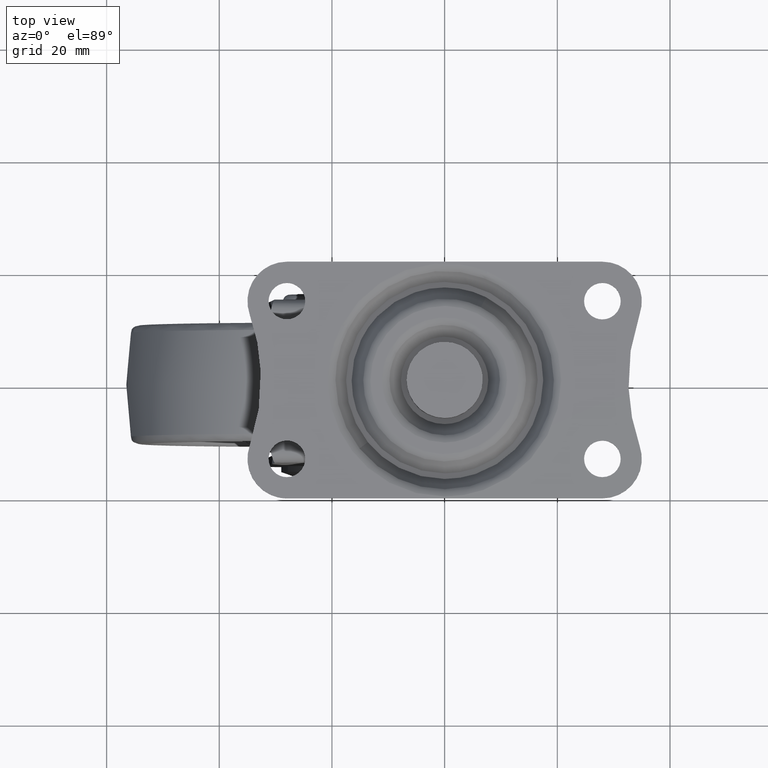
[diagram: clean part render]
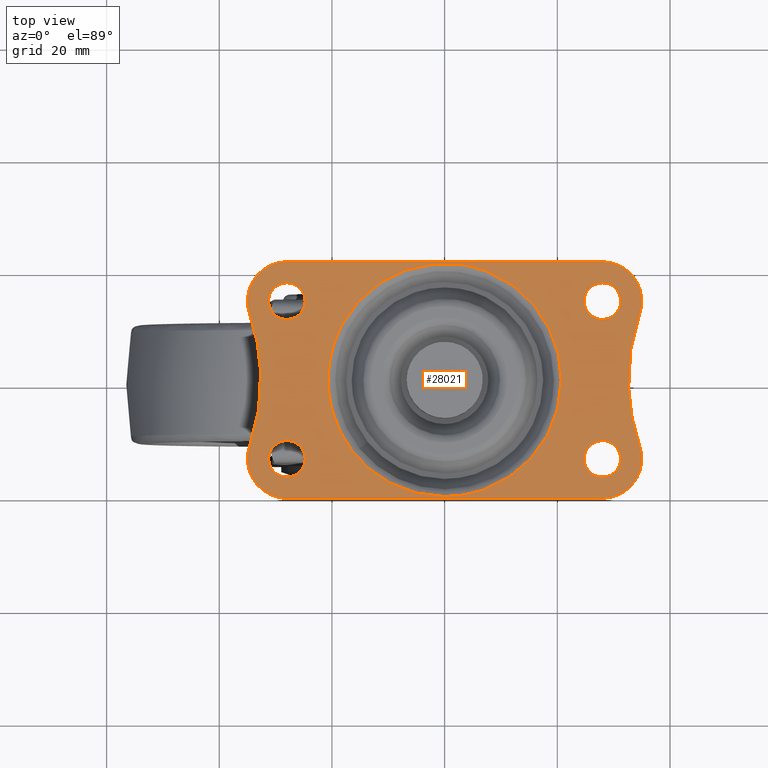
[diagram: same view with one face highlighted and labeled with its STEP entity id]
A machine part, top view. The second image highlights one B-rep face of the part: STEP entity #28021.
In plain terms, the highlighted face is a freeform B-spline surface patch.
Its self-contained STEP definition (entity closure, byte-faithful):
#21251=CARTESIAN_POINT('',(-30.098661759313249,16.481556132544569,1.499999999999946));
#21252=VERTEX_POINT('',#21251);
#21258=CARTESIAN_POINT('',(-31.249999800000001,14.0,1.499999999999946));
#21259=VERTEX_POINT('',#21258);
#21260=CARTESIAN_POINT('',(-30.098661759313249,16.481556132544569,1.499999999999946));
#21261=CARTESIAN_POINT('',(-30.289594237411581,16.320154293249061,1.499999999999947));
#21262=CARTESIAN_POINT('',(-30.623752231378621,15.963778604898430,1.499999999999943));
#21263=CARTESIAN_POINT('',(-30.974920071749391,15.363702581150390,1.499999999999943));
#21264=CARTESIAN_POINT('',(-31.197124987303312,14.705887535537650,1.499999999999956));
#21265=CARTESIAN_POINT('',(-31.250053074161389,14.250012150224620,1.499999999999941));
#21266=CARTESIAN_POINT('',(-31.249999800000001,14.0,1.499999999999946));
#21267=B_SPLINE_CURVE_WITH_KNOTS('',3,(#21260,#21261,#21262,#21263,#21264,#21265,#21266),.UNSPECIFIED.,.F.,.U.,(4,1,1,1,4),(0.000000054423092,0.750026321992885,1.455906029096063,2.073600820210960,2.823627087781163),.UNSPECIFIED.);
#21268=EDGE_CURVE('',#21252,#21259,#21267,.T.);
#21270=CARTESIAN_POINT('',(-27.999997928806089,10.750000200000660,1.499999999999946));
#21271=VERTEX_POINT('',#21270);
#21272=CARTESIAN_POINT('',(-31.249999800000001,14.0,1.499999999999946));
#21273=CARTESIAN_POINT('',(-31.250184525599611,13.654315834987971,1.499999999999946));
#21274=CARTESIAN_POINT('',(-31.168629431308140,13.149254880770741,1.499999999999947));
#21275=CARTESIAN_POINT('',(-30.893079888065120,12.484195588004100,1.499999999999947));
#21276=CARTESIAN_POINT('',(-30.578643457823169,11.987597755424479,1.499999999999945));
#21277=CARTESIAN_POINT('',(-30.136500463179491,11.523209991700501,1.499999999999948));
#21278=CARTESIAN_POINT('',(-29.612254228586071,11.153992996147981,1.499999999999942));
#21279=CARTESIAN_POINT('',(-28.903919822883601,10.839956242095861,1.499999999999953));
#21280=CARTESIAN_POINT('',(-28.345680067237780,10.749811561309039,1.499999999999937));
#21281=CARTESIAN_POINT('',(-27.999997928806089,10.750000200000660,1.499999999999946));
#21282=B_SPLINE_CURVE_WITH_KNOTS('',3,(#21272,#21273,#21274,#21275,#21276,#21277,#21278,#21279,#21280,#21281),.UNSPECIFIED.,.F.,.U.,(4,1,1,1,1,1,1,4),(0.000000086994697,1.036990327624215,1.515618314076126,2.153791717554028,2.791894719708033,3.430051568851688,4.068226782471074,5.105217022309462),.UNSPECIFIED.);
#21283=EDGE_CURVE('',#21259,#21271,#21282,.T.);
#21285=CARTESIAN_POINT('',(-24.750000199999999,14.0,1.499999999999946));
#21286=VERTEX_POINT('',#21285);
#21287=CARTESIAN_POINT('',(-27.999997928806089,10.750000200000660,1.499999999999946));
#21288=CARTESIAN_POINT('',(-27.654315511227459,10.749812278349269,1.499999999999945));
#21289=CARTESIAN_POINT('',(-27.096079022728311,10.839954147837460,1.499999999999947));
#21290=CARTESIAN_POINT('',(-26.387738840174130,11.153997100902471,1.499999999999946));
#21291=CARTESIAN_POINT('',(-25.863501423968259,11.523205239792439,1.499999999999949));
#21292=CARTESIAN_POINT('',(-25.421350830321810,11.987600571720860,1.499999999999942));
#21293=CARTESIAN_POINT('',(-25.106918182389879,12.484195088063791,1.499999999999956));
#21294=CARTESIAN_POINT('',(-24.831370970281601,13.149254035125100,1.499999999999940));
#21295=CARTESIAN_POINT('',(-24.749814484360758,13.654317157090130,1.499999999999949));
#21296=CARTESIAN_POINT('',(-24.750000199999999,14.0,1.499999999999946));
#21297=B_SPLINE_CURVE_WITH_KNOTS('',3,(#21287,#21288,#21289,#21290,#21291,#21292,#21293,#21294,#21295,#21296),.UNSPECIFIED.,.F.,.U.,(4,1,1,1,1,1,1,4),(0.000000089835869,1.036989855547969,1.675164777407963,2.313321333277914,2.951424042725895,3.589597153540688,4.068224921029611,5.105214687532925),.UNSPECIFIED.);
#21298=EDGE_CURVE('',#21271,#21286,#21297,.T.);
#21300=CARTESIAN_POINT('',(-25.642533914758179,16.237151983182429,1.499999999999946));
#21301=VERTEX_POINT('',#21300);
#21302=CARTESIAN_POINT('',(-24.750000199999999,14.0,1.499999999999946));
#21303=CARTESIAN_POINT('',(-24.749812915471310,14.334165562678439,1.499999999999946));
#21304=CARTESIAN_POINT('',(-24.834026930013131,14.873795731367821,1.499999999999947));
#21305=CARTESIAN_POINT('',(-25.158316644193729,15.633702982772739,1.499999999999946));
#21306=CARTESIAN_POINT('',(-25.447844304890332,16.032118625284639,1.499999999999945));
#21307=CARTESIAN_POINT('',(-25.642533914758179,16.237151983182429,1.499999999999946));
#21308=B_SPLINE_CURVE_WITH_KNOTS('',3,(#21302,#21303,#21304,#21305,#21306,#21307),.UNSPECIFIED.,.F.,.U.,(4,1,1,4),(0.000000029991058,1.002438272913163,1.619299686799069,2.467516887361315),.UNSPECIFIED.);
#21309=EDGE_CURVE('',#21286,#21301,#21308,.T.);
#21394=CARTESIAN_POINT('',(-28.000002071193940,17.249999799999340,1.499999999999946));
#21395=VERTEX_POINT('',#21394);
#21396=CARTESIAN_POINT('',(-25.642533914758179,16.237151983182429,1.499999999999946));
#21397=CARTESIAN_POINT('',(-25.812715970527329,16.416558056461071,1.499999999999950));
#21398=CARTESIAN_POINT('',(-26.173112256698939,16.718425344399531,1.499999999999940));
#21399=CARTESIAN_POINT('',(-26.956197425681300,17.128107174417458,1.499999999999954));
#21400=CARTESIAN_POINT('',(-27.587795603666478,17.250424369698319,1.499999999999939));
#21401=CARTESIAN_POINT('',(-28.000002071193940,17.249999799999340,1.499999999999946));
#21402=B_SPLINE_CURVE_WITH_KNOTS('',3,(#21396,#21397,#21398,#21399,#21400,#21401),.UNSPECIFIED.,.F.,.U.,(4,1,1,4),(0.000000023109830,0.741853484221563,1.401278179557500,2.637701058364158),.UNSPECIFIED.);
#21403=EDGE_CURVE('',#21301,#21395,#21402,.T.);
#21405=CARTESIAN_POINT('',(-28.000002071193940,17.249999799999340,1.499999999999946));
#21406=CARTESIAN_POINT('',(-28.213892175693019,17.250021494945042,1.499999999999946));
#21407=CARTESIAN_POINT('',(-28.665423814772701,17.205277089497809,1.499999999999948));
#21408=CARTESIAN_POINT('',(-29.394725705898889,16.974042795621362,1.499999999999943));
#21409=CARTESIAN_POINT('',(-29.862817059486641,16.681141609984468,1.499999999999947));
#21410=CARTESIAN_POINT('',(-30.098661759313249,16.481556132544569,1.499999999999946));
#21411=B_SPLINE_CURVE_WITH_KNOTS('',3,(#21405,#21406,#21407,#21408,#21409,#21410),.UNSPECIFIED.,.F.,.U.,(4,1,1,4),(0.000000032594363,0.641680229335874,1.354642996717356,2.281526408582084),.UNSPECIFIED.);
#21412=EDGE_CURVE('',#21395,#21252,#21411,.T.);
#21458=CARTESIAN_POINT('',(-30.098661759313249,-11.518451867455290,1.499999999999946));
#21459=VERTEX_POINT('',#21458);
#21465=CARTESIAN_POINT('',(-31.249999800000001,-14.000007999999861,1.499999999999946));
#21466=VERTEX_POINT('',#21465);
#21467=CARTESIAN_POINT('',(-30.098661759313249,-11.518451867455290,1.499999999999946));
#21468=CARTESIAN_POINT('',(-30.267107771181099,-11.660883446761471,1.499999999999946));
#21469=CARTESIAN_POINT('',(-30.605661424508920,-12.012113388912050,1.499999999999948));
#21470=CARTESIAN_POINT('',(-30.965468887856410,-12.608308317754400,1.499999999999943));
#21471=CARTESIAN_POINT('',(-31.197128128382509,-13.294119689958480,1.499999999999956));
#21472=CARTESIAN_POINT('',(-31.250051592581219,-13.749996320551890,1.499999999999939));
#21473=CARTESIAN_POINT('',(-31.249999800000001,-14.000007999999861,1.499999999999946));
#21474=B_SPLINE_CURVE_WITH_KNOTS('',3,(#21467,#21468,#21469,#21470,#21471,#21472,#21473),.UNSPECIFIED.,.F.,.U.,(4,1,1,1,4),(0.000000054425447,0.661787303533556,1.455906029096571,2.073600820211106,2.823627087781160),.UNSPECIFIED.);
#21475=EDGE_CURVE('',#21459,#21466,#21474,.T.);
#21477=CARTESIAN_POINT('',(-27.999997928806089,-17.250007799999199,1.499999999999946));
#21478=VERTEX_POINT('',#21477);
#21479=CARTESIAN_POINT('',(-31.249999800000001,-14.000007999999861,1.499999999999946));
#21480=CARTESIAN_POINT('',(-31.250024498893080,-14.212710222109090,1.499999999999945));
#21481=CARTESIAN_POINT('',(-31.205478234679500,-14.664721032946950,1.499999999999947));
#21482=CARTESIAN_POINT('',(-30.987390759531550,-15.353302889201570,1.499999999999946));
#21483=CARTESIAN_POINT('',(-30.560490652122930,-16.065709442088309,1.499999999999948));
#21484=CARTESIAN_POINT('',(-29.976489319201921,-16.621677681362410,1.499999999999942));
#21485=CARTESIAN_POINT('',(-29.302278756384471,-17.003532988793360,1.499999999999950));
#21486=CARTESIAN_POINT('',(-28.664709948475849,-17.205488209646440,1.499999999999953));
#21487=CARTESIAN_POINT('',(-28.212700803627779,-17.250032910567370,1.499999999999929));
#21488=CARTESIAN_POINT('',(-27.999997928806089,-17.250007799999199,1.499999999999946));
#21489=B_SPLINE_CURVE_WITH_KNOTS('',3,(#21479,#21480,#21481,#21482,#21483,#21484,#21485,#21486,#21487,#21488),.UNSPECIFIED.,.F.,.U.,(4,1,1,1,1,1,1,4),(0.000000086997925,0.638124658410064,1.356074064954921,2.153791717555712,3.110962394410122,3.749143044737871,4.467092451277877,5.105217022309413),.UNSPECIFIED.);
#21490=EDGE_CURVE('',#21466,#21478,#21489,.T.);
#21492=CARTESIAN_POINT('',(-24.750000199999999,-14.000007999999861,1.499999999999946));
#21493=VERTEX_POINT('',#21492);
#21494=CARTESIAN_POINT('',(-27.999997928806089,-17.250007799999199,1.499999999999946));
#21495=CARTESIAN_POINT('',(-27.707516701486341,-17.250104416484469,1.499999999999947));
#21496=CARTESIAN_POINT('',(-27.202369066619479,-17.181340585061541,1.499999999999947));
#21497=CARTESIAN_POINT('',(-26.579205634243358,-16.940909266713060,1.499999999999946));
#21498=CARTESIAN_POINT('',(-25.984568161577162,-16.584612777350831,1.499999999999947));
#21499=CARTESIAN_POINT('',(-25.478433132207030,-16.102791430963549,1.499999999999943));
#21500=CARTESIAN_POINT('',(-25.106934802206951,-15.515794464587310,1.499999999999950));
#21501=CARTESIAN_POINT('',(-24.831372623470980,-14.850751233366910,1.499999999999946));
#21502=CARTESIAN_POINT('',(-24.749813946070990,-14.345691775458979,1.499999999999946));
#21503=CARTESIAN_POINT('',(-24.750000199999999,-14.000007999999861,1.499999999999946));
#21504=B_SPLINE_CURVE_WITH_KNOTS('',3,(#21494,#21495,#21496,#21497,#21498,#21499,#21500,#21501,#21502,#21503),.UNSPECIFIED.,.F.,.U.,(4,1,1,1,1,1,1,4),(0.000000089835841,0.877442701142752,1.515617622918524,1.994253805430586,2.951424042725838,3.589597153540647,4.068224921029596,5.105214687532926),.UNSPECIFIED.);
#21505=EDGE_CURVE('',#21478,#21493,#21504,.T.);
#21507=CARTESIAN_POINT('',(-25.642533914758179,-11.762856016817430,1.499999999999946));
#21508=VERTEX_POINT('',#21507);
#21509=CARTESIAN_POINT('',(-24.750000199999999,-14.000007999999861,1.499999999999946));
#21510=CARTESIAN_POINT('',(-24.749920988199420,-13.717266933189009,1.499999999999948));
#21511=CARTESIAN_POINT('',(-24.820872001588430,-13.177559219943269,1.499999999999944));
#21512=CARTESIAN_POINT('',(-25.127792950922089,-12.408218243198659,1.499999999999947));
#21513=CARTESIAN_POINT('',(-25.447860745877801,-11.967901674671070,1.499999999999947));
#21514=CARTESIAN_POINT('',(-25.642533914758179,-11.762856016817430,1.499999999999946));
#21515=B_SPLINE_CURVE_WITH_KNOTS('',3,(#21509,#21510,#21511,#21512,#21513,#21514),.UNSPECIFIED.,.F.,.U.,(4,1,1,4),(0.000000029990713,0.848217230607003,1.619299686798971,2.467516887361312),.UNSPECIFIED.);
#21516=EDGE_CURVE('',#21493,#21508,#21515,.T.);
#21600=CARTESIAN_POINT('',(-28.000002071193940,-10.750008200000520,1.499999999999946));
#21601=VERTEX_POINT('',#21600);
#21602=CARTESIAN_POINT('',(-25.642533914758179,-11.762856016817430,1.499999999999946));
#21603=CARTESIAN_POINT('',(-25.812716261999221,-11.583448340737000,1.499999999999949));
#21604=CARTESIAN_POINT('',(-26.173112427896740,-11.281583253363159,1.499999999999942));
#21605=CARTESIAN_POINT('',(-26.956197747361930,-10.871900470533649,1.499999999999953));
#21606=CARTESIAN_POINT('',(-27.587794571794561,-10.749583842618760,1.499999999999942));
#21607=CARTESIAN_POINT('',(-28.000002071193940,-10.750008200000520,1.499999999999946));
#21608=B_SPLINE_CURVE_WITH_KNOTS('',3,(#21602,#21603,#21604,#21605,#21606,#21607),.UNSPECIFIED.,.F.,.U.,(4,1,1,4),(0.000000023110223,0.741853484221908,1.401278179557704,2.637701058364167),.UNSPECIFIED.);
#21609=EDGE_CURVE('',#21508,#21601,#21608,.T.);
#21611=CARTESIAN_POINT('',(-28.000002071193940,-10.750008200000520,1.499999999999946));
#21612=CARTESIAN_POINT('',(-28.261424753598209,-10.749964186063711,1.499999999999946));
#21613=CARTESIAN_POINT('',(-28.808024957539981,-10.816267383801870,1.499999999999948));
#21614=CARTESIAN_POINT('',(-29.522385054004690,-11.095751268702010,1.499999999999946));
#21615=CARTESIAN_POINT('',(-29.935354925129239,-11.380328294928940,1.499999999999946));
#21616=CARTESIAN_POINT('',(-30.098661759313249,-11.518451867455290,1.499999999999946));
#21617=B_SPLINE_CURVE_WITH_KNOTS('',3,(#21611,#21612,#21613,#21614,#21615,#21616),.UNSPECIFIED.,.F.,.U.,(4,1,1,4),(0.000000032594146,0.784282458853431,1.639846211801305,2.281526408582081),.UNSPECIFIED.);
#21618=EDGE_CURVE('',#21601,#21459,#21617,.T.);
#21664=CARTESIAN_POINT('',(25.901338240686758,16.481556132544569,1.499999999999946));
#21665=VERTEX_POINT('',#21664);
#21671=CARTESIAN_POINT('',(24.750000199999999,14.0,1.499999999999946));
#21672=VERTEX_POINT('',#21671);
#21673=CARTESIAN_POINT('',(25.901338240686758,16.481556132544569,1.499999999999946));
#21674=CARTESIAN_POINT('',(25.710422929661899,16.320145995794210,1.499999999999948));
#21675=CARTESIAN_POINT('',(25.325547644274131,15.909815889676270,1.499999999999946));
#21676=CARTESIAN_POINT('',(24.873354134004661,15.073445826126919,1.499999999999951));
#21677=CARTESIAN_POINT('',(24.749764664998992,14.382380993495939,1.499999999999943));
#21678=CARTESIAN_POINT('',(24.750000199999999,14.0,1.499999999999946));
#21679=B_SPLINE_CURVE_WITH_KNOTS('',3,(#21673,#21674,#21675,#21676,#21677,#21678),.UNSPECIFIED.,.F.,.U.,(4,1,1,4),(0.000000054423500,0.750026321993088,1.676517445520383,2.823627087781192),.UNSPECIFIED.);
#21680=EDGE_CURVE('',#21665,#21672,#21679,.T.);
#21682=CARTESIAN_POINT('',(28.000002071193919,10.750000200000660,1.499999999999946));
#21683=VERTEX_POINT('',#21682);
#21684=CARTESIAN_POINT('',(24.750000199999999,14.0,1.499999999999946));
#21685=CARTESIAN_POINT('',(24.749964324688730,13.734122412694759,1.499999999999944));
#21686=CARTESIAN_POINT('',(24.825345004103031,13.122533548219881,1.499999999999954));
#21687=CARTESIAN_POINT('',(25.154170805541678,12.355282499721460,1.499999999999938));
#21688=CARTESIAN_POINT('',(25.631062808752642,11.744574838208511,1.499999999999957));
#21689=CARTESIAN_POINT('',(26.197412936153750,11.255800756192009,1.499999999999932));
#21690=CARTESIAN_POINT('',(26.989702136551330,10.857052531259480,1.499999999999952));
#21691=CARTESIAN_POINT('',(27.654328806535808,10.749823255927010,1.499999999999941));
#21692=CARTESIAN_POINT('',(28.000002071193919,10.750000200000660,1.499999999999946));
#21693=B_SPLINE_CURVE_WITH_KNOTS('',3,(#21684,#21685,#21686,#21687,#21688,#21689,#21690,#21691,#21692),.UNSPECIFIED.,.F.,.U.,(4,1,1,1,1,1,4),(0.000000086997127,0.797669561099499,1.834712010842125,2.472847485333932,3.110962394409981,4.068226782471383,5.105217022309443),.UNSPECIFIED.);
#21694=EDGE_CURVE('',#21672,#21683,#21693,.T.);
#21696=CARTESIAN_POINT('',(31.249999800000001,14.0,1.499999999999946));
#21697=VERTEX_POINT('',#21696);
#21698=CARTESIAN_POINT('',(28.000002071193919,10.750000200000660,1.499999999999946));
#21699=CARTESIAN_POINT('',(28.345683846445830,10.749811392389089,1.499999999999945));
#21700=CARTESIAN_POINT('',(28.903921509406970,10.839953551812110,1.499999999999950));
#21701=CARTESIAN_POINT('',(29.612260950656331,11.153997170427060,1.499999999999943));
#21702=CARTESIAN_POINT('',(30.136498602030411,11.523205367502319,1.499999999999950));
#21703=CARTESIAN_POINT('',(30.578649288227279,11.987600552332550,1.499999999999947));
#21704=CARTESIAN_POINT('',(30.893081695395811,12.484195102421060,1.499999999999942));
#21705=CARTESIAN_POINT('',(31.168629202465809,13.149254176614610,1.499999999999949));
#21706=CARTESIAN_POINT('',(31.250184762246189,13.654316901641099,1.499999999999946));
#21707=CARTESIAN_POINT('',(31.249999800000001,14.0,1.499999999999946));
#21708=B_SPLINE_CURVE_WITH_KNOTS('',3,(#21698,#21699,#21700,#21701,#21702,#21703,#21704,#21705,#21706,#21707),.UNSPECIFIED.,.F.,.U.,(4,1,1,1,1,1,1,4),(0.000000089835341,1.036989855547769,1.675164777407900,2.313321333277830,2.951424042725770,3.589597153540592,4.068224921029560,5.105214687532921),.UNSPECIFIED.);
#21709=EDGE_CURVE('',#21683,#21697,#21708,.T.);
#21711=CARTESIAN_POINT('',(30.357466085241821,16.237151983182429,1.499999999999946));
#21712=VERTEX_POINT('',#21711);
#21713=CARTESIAN_POINT('',(31.249999800000001,14.0,1.499999999999946));
#21714=CARTESIAN_POINT('',(31.250302336830512,14.385577738349030,1.499999999999943));
#21715=CARTESIAN_POINT('',(31.101848783783169,15.207840532212590,1.499999999999951));
#21716=CARTESIAN_POINT('',(30.658642386641802,15.920481839178381,1.499999999999946));
#21717=CARTESIAN_POINT('',(30.357466085241821,16.237151983182429,1.499999999999946));
#21718=B_SPLINE_CURVE_WITH_KNOTS('',3,(#21713,#21714,#21715,#21716,#21717),.UNSPECIFIED.,.F.,.U.,(4,1,4),(0.000000029991093,1.156653471518189,2.467516887361310),.UNSPECIFIED.);
#21719=EDGE_CURVE('',#21697,#21712,#21718,.T.);
#21803=CARTESIAN_POINT('',(27.999997928806049,17.249999799999340,1.499999999999946));
#21804=VERTEX_POINT('',#21803);
#21805=CARTESIAN_POINT('',(30.357466085241821,16.237151983182429,1.499999999999946));
#21806=CARTESIAN_POINT('',(30.111747985467190,16.496432272610711,1.499999999999947));
#21807=CARTESIAN_POINT('',(29.644785894699840,16.848487616258801,1.499999999999946));
#21808=CARTESIAN_POINT('',(28.824205812873199,17.176645641816211,1.499999999999947));
#21809=CARTESIAN_POINT('',(28.302235584904292,17.250099747547100,1.499999999999946));
#21810=CARTESIAN_POINT('',(27.999997928806049,17.249999799999340,1.499999999999946));
#21811=B_SPLINE_CURVE_WITH_KNOTS('',3,(#21805,#21806,#21807,#21808,#21809,#21810),.UNSPECIFIED.,.F.,.U.,(4,1,1,4),(0.000000023110382,1.071566757086633,1.730990976169198,2.637701058364169),.UNSPECIFIED.);
#21812=EDGE_CURVE('',#21712,#21804,#21811,.T.);
#21814=CARTESIAN_POINT('',(27.999997928806049,17.249999799999340,1.499999999999946));
#21815=CARTESIAN_POINT('',(27.643485567640671,17.250226867642560,1.499999999999946));
#21816=CARTESIAN_POINT('',(26.883164911617801,17.123519539950390,1.499999999999949));
#21817=CARTESIAN_POINT('',(26.209608183168729,16.742793246567739,1.499999999999945));
#21818=CARTESIAN_POINT('',(25.901338240686758,16.481556132544569,1.499999999999946));
#21819=B_SPLINE_CURVE_WITH_KNOTS('',3,(#21814,#21815,#21816,#21817,#21818),.UNSPECIFIED.,.F.,.U.,(4,1,4),(0.000000032595400,1.069474197427093,2.281526408582072),.UNSPECIFIED.);
#21820=EDGE_CURVE('',#21804,#21665,#21819,.T.);
#21865=CARTESIAN_POINT('',(25.901338240686758,-11.518443867455430,1.499999999999946));
#21866=VERTEX_POINT('',#21865);
#21872=CARTESIAN_POINT('',(24.750000199999999,-14.0,1.499999999999946));
#21873=VERTEX_POINT('',#21872);
#21874=CARTESIAN_POINT('',(25.901338240686758,-11.518443867455430,1.499999999999946));
#21875=CARTESIAN_POINT('',(25.710422785933609,-11.679854323152581,1.499999999999946));
#21876=CARTESIAN_POINT('',(25.325547433909790,-12.090184039352540,1.499999999999947));
#21877=CARTESIAN_POINT('',(24.873354521727300,-12.926554293742351,1.499999999999943));
#21878=CARTESIAN_POINT('',(24.749764402500659,-13.617618771119639,1.499999999999946));
#21879=CARTESIAN_POINT('',(24.750000199999999,-14.0,1.499999999999946));
#21880=B_SPLINE_CURVE_WITH_KNOTS('',3,(#21874,#21875,#21876,#21877,#21878,#21879),.UNSPECIFIED.,.F.,.U.,(4,1,1,4),(0.000000054424850,0.750026321994178,1.676517445521048,2.823627087781166),.UNSPECIFIED.);
#21881=EDGE_CURVE('',#21866,#21873,#21880,.T.);
#21883=CARTESIAN_POINT('',(28.000002071193919,-17.249999799999340,1.499999999999946));
#21884=VERTEX_POINT('',#21883);
#21885=CARTESIAN_POINT('',(24.750000199999999,-14.0,1.499999999999946));
#21886=CARTESIAN_POINT('',(24.749690156158010,-14.398887600713760,1.499999999999947));
#21887=CARTESIAN_POINT('',(24.864002583740248,-15.010180519010380,1.499999999999950));
#21888=CARTESIAN_POINT('',(25.236555835370339,-15.749959587246220,1.499999999999941));
#21889=CARTESIAN_POINT('',(25.631021701369828,-16.255453156034879,1.499999999999951));
#21890=CARTESIAN_POINT('',(26.116554948467599,-16.674279872636710,1.499999999999952));
#21891=CARTESIAN_POINT('',(26.697712801534230,-17.003528348518302,1.499999999999941));
#21892=CARTESIAN_POINT('',(27.335290031218559,-17.205489819433751,1.499999999999947));
#21893=CARTESIAN_POINT('',(27.787297622994188,-17.250019016880280,1.499999999999945));
#21894=CARTESIAN_POINT('',(28.000002071193919,-17.249999799999340,1.499999999999946));
#21895=B_SPLINE_CURVE_WITH_KNOTS('',3,(#21885,#21886,#21887,#21888,#21889,#21890,#21891,#21892,#21893,#21894),.UNSPECIFIED.,.F.,.U.,(4,1,1,1,1,1,1,4),(0.000000086994818,1.196534576734507,1.834712010840635,2.472847485332700,3.110962394409103,3.749143044737235,4.467092451277671,5.105217022309441),.UNSPECIFIED.);
#21896=EDGE_CURVE('',#21873,#21884,#21895,.T.);
#21898=CARTESIAN_POINT('',(31.249999800000001,-14.0,1.499999999999946));
#21899=VERTEX_POINT('',#21898);
#21900=CARTESIAN_POINT('',(28.000002071193919,-17.249999799999340,1.499999999999946));
#21901=CARTESIAN_POINT('',(28.345684221596660,-17.250188922250171,1.499999999999946));
#21902=CARTESIAN_POINT('',(28.903920978834741,-17.160045139273471,1.499999999999949));
#21903=CARTESIAN_POINT('',(29.612261094512029,-16.846003184674821,1.499999999999944));
#21904=CARTESIAN_POINT('',(30.136498642621639,-16.476794968518920,1.499999999999951));
#21905=CARTESIAN_POINT('',(30.578649422701101,-16.012398369596109,1.499999999999944));
#21906=CARTESIAN_POINT('',(30.893081329325401,-15.515806416079950,1.499999999999946));
#21907=CARTESIAN_POINT('',(31.168630146038570,-14.850743686279360,1.499999999999945));
#21908=CARTESIAN_POINT('',(31.250184221094660,-14.345684786529350,1.499999999999949));
#21909=CARTESIAN_POINT('',(31.249999800000001,-14.0,1.499999999999946));
#21910=B_SPLINE_CURVE_WITH_KNOTS('',3,(#21900,#21901,#21902,#21903,#21904,#21905,#21906,#21907,#21908,#21909),.UNSPECIFIED.,.F.,.U.,(4,1,1,1,1,1,1,4),(0.000000089836025,1.036989855547883,1.675164777407911,2.313321333277967,2.951424042725997,3.589597153540778,4.068224921029691,5.105214687532920),.UNSPECIFIED.);
#21911=EDGE_CURVE('',#21884,#21899,#21910,.T.);
#21913=CARTESIAN_POINT('',(30.357466085241821,-11.762848016817580,1.499999999999946));
#21914=VERTEX_POINT('',#21913);
#21915=CARTESIAN_POINT('',(31.249999800000001,-14.0,1.499999999999946));
#21916=CARTESIAN_POINT('',(31.250166840256149,-13.665839676142170,1.499999999999946));
#21917=CARTESIAN_POINT('',(31.165988369880580,-13.126200264615701,1.499999999999944));
#21918=CARTESIAN_POINT('',(30.841683954366349,-12.366297575577480,1.499999999999949));
#21919=CARTESIAN_POINT('',(30.552153154569599,-11.967882104372270,1.499999999999943));
#21920=CARTESIAN_POINT('',(30.357466085241821,-11.762848016817580,1.499999999999946));
#21921=B_SPLINE_CURVE_WITH_KNOTS('',3,(#21915,#21916,#21917,#21918,#21919,#21920),.UNSPECIFIED.,.F.,.U.,(4,1,1,4),(0.000000029991174,1.002438272913224,1.619299686799063,2.467516887361312),.UNSPECIFIED.);
#21922=EDGE_CURVE('',#21899,#21914,#21921,.T.);
#22007=CARTESIAN_POINT('',(27.999997928806049,-10.750000200000660,1.499999999999946));
#22008=VERTEX_POINT('',#22007);
#22009=CARTESIAN_POINT('',(30.357466085241821,-11.762848016817580,1.499999999999946));
#22010=CARTESIAN_POINT('',(30.111747091439021,-11.503569861647380,1.499999999999947));
#22011=CARTESIAN_POINT('',(29.644785850986729,-11.151511395220931,1.499999999999946));
#22012=CARTESIAN_POINT('',(28.824206074970270,-10.823355564237580,1.499999999999945));
#22013=CARTESIAN_POINT('',(28.302235459515440,-10.749899710109830,1.499999999999947));
#22014=CARTESIAN_POINT('',(27.999997928806049,-10.750000200000660,1.499999999999946));
#22015=B_SPLINE_CURVE_WITH_KNOTS('',3,(#22009,#22010,#22011,#22012,#22013,#22014),.UNSPECIFIED.,.F.,.U.,(4,1,1,4),(0.000000023110578,1.071566757086740,1.730990976169270,2.637701058364173),.UNSPECIFIED.);
#22016=EDGE_CURVE('',#21914,#22008,#22015,.T.);
#22018=CARTESIAN_POINT('',(27.999997928806049,-10.750000200000660,1.499999999999946));
#22019=CARTESIAN_POINT('',(27.643488279618360,-10.749799189090670,1.499999999999945));
#22020=CARTESIAN_POINT('',(26.883160724725890,-10.876434887534970,1.499999999999947));
#22021=CARTESIAN_POINT('',(26.209615640252210,-11.257234048003960,1.499999999999946));
#22022=CARTESIAN_POINT('',(25.901338240686758,-11.518443867455430,1.499999999999946));
#22023=B_SPLINE_CURVE_WITH_KNOTS('',3,(#22018,#22019,#22020,#22021,#22022),.UNSPECIFIED.,.F.,.U.,(4,1,4),(0.000000032595358,1.069474197427007,2.281526408582079),.UNSPECIFIED.);
#22024=EDGE_CURVE('',#22008,#21866,#22023,.T.);
#25435=CARTESIAN_POINT('',(-18.263908657645331,9.743827620979936,1.500000000000000));
#25436=VERTEX_POINT('',#25435);
#25447=CARTESIAN_POINT('',(-20.700544344917251,0.0,1.500000000000000));
#25448=VERTEX_POINT('',#25447);
#25449=CARTESIAN_POINT('',(-20.700544344917251,0.0,1.500000000000000));
#25450=CARTESIAN_POINT('',(-20.700607347679831,1.056783349009629,1.500000000000004));
#25451=CARTESIAN_POINT('',(-20.554541499019109,2.958966790348559,1.499999999999996));
#25452=CARTESIAN_POINT('',(-19.833737765196400,6.269469156884984,1.500000000000003));
#25453=CARTESIAN_POINT('',(-18.960533190852470,8.438575754220977,1.500000000000000));
#25454=CARTESIAN_POINT('',(-18.263908657645331,9.743827620979936,1.500000000000000));
#25455=B_SPLINE_CURVE_WITH_KNOTS('',3,(#25449,#25450,#25451,#25452,#25453,#25454),.UNSPECIFIED.,.F.,.U.,(4,1,1,4),(8.026463E-009,3.170350863996434,5.706631200999644,10.145122561123401),.UNSPECIFIED.);
#25456=EDGE_CURVE('',#25448,#25436,#25455,.T.);
#25458=CARTESIAN_POINT('',(-0.000001683902148,-20.700544344917180,1.500000000000000));
#25459=VERTEX_POINT('',#25458);
#25460=CARTESIAN_POINT('',(-0.000001683902148,-20.700544344917180,1.500000000000000));
#25461=CARTESIAN_POINT('',(-1.651264222033004,-20.700906024418551,1.500000000000006));
#25462=CARTESIAN_POINT('',(-4.233717898146389,-20.389803362532160,1.499999999999991));
#25463=CARTESIAN_POINT('',(-7.915090251529099,-19.223520304251931,1.500000000000008));
#25464=CARTESIAN_POINT('',(-10.611543764299700,-17.866238718702011,1.500000000000006));
#25465=CARTESIAN_POINT('',(-13.241102512731180,-16.002168246296311,1.499999999999981));
#25466=CARTESIAN_POINT('',(-15.308638175591881,-14.045768477263980,1.500000000000041));
#25467=CARTESIAN_POINT('',(-17.011914086329060,-11.876883929182039,1.499999999999939));
#25468=CARTESIAN_POINT('',(-18.251181791222489,-9.851754280649042,1.500000000000058));
#25469=CARTESIAN_POINT('',(-19.393446182536099,-7.436839852938042,1.499999999999962));
#25470=CARTESIAN_POINT('',(-20.412878151396370,-4.149143571773118,1.500000000000021));
#25471=CARTESIAN_POINT('',(-20.700796986764459,-1.481877893136902,1.499999999999994));
#25472=CARTESIAN_POINT('',(-20.700544344917251,0.0,1.500000000000000));
#25473=B_SPLINE_CURVE_WITH_KNOTS('',3,(#25460,#25461,#25462,#25463,#25464,#25465,#25466,#25467,#25468,#25469,#25470,#25471,#25472),.UNSPECIFIED.,.F.,.U.,(4,1,1,1,1,1,1,1,1,1,4),(0.000000079987224,4.953663131727502,7.748045433112722,11.558580944889449,13.971893438081640,17.401303458717081,20.068708561221129,22.227998630919540,24.514309751413201,28.070793426337101,32.516389079274617),.UNSPECIFIED.);
#25474=EDGE_CURVE('',#25459,#25448,#25473,.T.);
#25476=CARTESIAN_POINT('',(20.700544344917251,0.0,1.500000000000000));
#25477=VERTEX_POINT('',#25476);
#25478=CARTESIAN_POINT('',(20.700544344917251,0.0,1.500000000000000));
#25479=CARTESIAN_POINT('',(20.700617729267289,-1.185479623922956,1.500000000000004));
#25480=CARTESIAN_POINT('',(20.481824160222949,-3.725827136864288,1.499999999999995));
#25481=CARTESIAN_POINT('',(19.596783468407050,-6.923962356773505,1.499999999999998));
#25482=CARTESIAN_POINT('',(18.168219505934431,-10.094111126035219,1.500000000000002));
#25483=CARTESIAN_POINT('',(16.474671263450940,-12.697350498727021,1.500000000000001));
#25484=CARTESIAN_POINT('',(14.343906213468150,-15.004975840771920,1.499999999999984));
#25485=CARTESIAN_POINT('',(12.229143330010389,-16.773366660135011,1.499999999999997));
#25486=CARTESIAN_POINT('',(9.938628874354519,-18.233728588048020,1.500000000000015));
#25487=CARTESIAN_POINT('',(7.507985083054375,-19.346956487290232,1.499999999999968));
#25488=CARTESIAN_POINT('',(4.233698684992318,-20.384480716009701,1.500000000000065));
#25489=CARTESIAN_POINT('',(1.735945000127464,-20.700990575760120,1.499999999999936));
#25490=CARTESIAN_POINT('',(-0.000001683902148,-20.700544344917180,1.500000000000000));
#25491=B_SPLINE_CURVE_WITH_KNOTS('',3,(#25478,#25479,#25480,#25481,#25482,#25483,#25484,#25485,#25486,#25487,#25488,#25489,#25490),.UNSPECIFIED.,.F.,.U.,(4,1,1,1,1,1,1,1,1,1,4),(0.000000079822293,3.556449160263252,7.621027037921270,9.907340626697511,13.971894252776870,16.893274223199128,19.306573472643070,22.227999928945909,25.022380098324859,27.308707883609280,32.516390977427783),.UNSPECIFIED.);
#25492=EDGE_CURVE('',#25477,#25459,#25491,.T.);
#25494=CARTESIAN_POINT('',(7.569829242379967,19.266816579700311,1.500000000000000));
#25495=VERTEX_POINT('',#25494);
#25496=CARTESIAN_POINT('',(7.569829242379967,19.266816579700311,1.500000000000000));
#25497=CARTESIAN_POINT('',(8.530320350452437,18.889501381424679,1.500000000000001));
#25498=CARTESIAN_POINT('',(10.336424621678910,18.018876296326759,1.500000000000000));
#25499=CARTESIAN_POINT('',(12.586769379984229,16.498998100180518,1.499999999999997));
#25500=CARTESIAN_POINT('',(14.585228031653520,14.761914679584081,1.500000000000006));
#25501=CARTESIAN_POINT('',(16.533678433393291,12.601189449072860,1.499999999999993));
#25502=CARTESIAN_POINT('',(18.223519882776110,9.992661467962703,1.499999999999990));
#25503=CARTESIAN_POINT('',(19.622346830074591,6.865589041145802,1.500000000000030));
#25504=CARTESIAN_POINT('',(20.493893638290778,3.611813425502563,1.499999999999979));
#25505=CARTESIAN_POINT('',(20.700621134640489,1.160937213439816,1.500000000000011));
#25506=CARTESIAN_POINT('',(20.700544344917251,0.0,1.500000000000000));
#25507=B_SPLINE_CURVE_WITH_KNOTS('',3,(#25496,#25497,#25498,#25499,#25500,#25501,#25502,#25503,#25504,#25505,#25506),.UNSPECIFIED.,.F.,.U.,(4,1,1,1,1,1,1,1,4),(0.000000025751184,3.095837402384724,5.998220310696478,8.126630124371197,11.029017939442150,14.705310959452900,17.414181552736569,21.284026345019750,24.766846874676919),.UNSPECIFIED.);
#25508=EDGE_CURVE('',#25495,#25477,#25507,.T.);
#25542=CARTESIAN_POINT('',(-18.263908657645331,9.743827620979936,1.500000000000000));
#25543=CARTESIAN_POINT('',(-17.581056059091729,11.024278881731661,1.500000000000005));
#25544=CARTESIAN_POINT('',(-16.320324073087701,12.885323459243081,1.499999999999994));
#25545=CARTESIAN_POINT('',(-13.864778707999770,15.483319257686910,1.500000000000007));
#25546=CARTESIAN_POINT('',(-11.094667464610900,17.633842665963719,1.499999999999987));
#25547=CARTESIAN_POINT('',(-7.816652133574911,19.274145042740230,1.500000000000028));
#25548=CARTESIAN_POINT('',(-4.282453556637901,20.353289813142471,1.499999999999980));
#25549=CARTESIAN_POINT('',(-1.077230878842178,20.767942594497011,1.500000000000011));
#25550=CARTESIAN_POINT('',(1.868640738590575,20.661163489310550,1.499999999999998));
#25551=CARTESIAN_POINT('',(4.625262100161440,20.244973552975949,1.500000000000002));
#25552=CARTESIAN_POINT('',(6.438260816143438,19.711537815353822,1.499999999999999));
#25553=CARTESIAN_POINT('',(7.569829242379967,19.266816579700311,1.500000000000000));
#25554=B_SPLINE_CURVE_WITH_KNOTS('',3,(#25542,#25543,#25544,#25545,#25546,#25547,#25548,#25549,#25550,#25551,#25552,#25553),.UNSPECIFIED.,.F.,.U.,(4,1,1,1,1,1,1,1,1,4),(0.000000066664313,4.353392998574815,6.706597397485229,10.707047545131910,14.825132931208170,17.648924353374039,21.767026998054700,24.473213753062328,26.473425366131959,30.120864087855061),.UNSPECIFIED.);
#25555=EDGE_CURVE('',#25436,#25495,#25554,.T.);
#27394=CARTESIAN_POINT('',(-3.580766839262390,20.999994360576999,1.500000000000000));
#27395=VERTEX_POINT('',#27394);
#27396=CARTESIAN_POINT('',(3.580759339263660,20.999995639421051,1.500000000000000));
#27397=VERTEX_POINT('',#27396);
#27398=CARTESIAN_POINT('',(-3.580766839262390,20.999994360576999,1.500000000000000));
#27399=CARTESIAN_POINT('',(3.580759339263660,20.999995639421051,1.500000000000000));
#27400=QUASI_UNIFORM_CURVE('',1,(#27398,#27399),.UNSPECIFIED.,.F.,.U.);
#27401=EDGE_CURVE('',#27395,#27397,#27400,.T.);
#27576=CARTESIAN_POINT('',(28.000003909537551,20.999999999999002,1.499999999999946));
#27577=VERTEX_POINT('',#27576);
#27583=CARTESIAN_POINT('',(34.612583487418703,11.703537585346320,1.499999999999946));
#27584=VERTEX_POINT('',#27583);
#27585=CARTESIAN_POINT('',(34.612583487418703,11.703537585346320,1.499999999999946));
#27586=CARTESIAN_POINT('',(34.749334734681071,12.097190659913720,1.499999999999948));
#27587=CARTESIAN_POINT('',(34.952214405878813,12.909010765371210,1.499999999999945));
#27588=CARTESIAN_POINT('',(35.030823894024849,14.091846091252050,1.499999999999947));
#27589=CARTESIAN_POINT('',(34.902277847131252,15.408927178278010,1.499999999999953));
#27590=CARTESIAN_POINT('',(34.531209126397947,16.648625051975340,1.499999999999941));
#27591=CARTESIAN_POINT('',(33.955244721493720,17.723590617121971,1.499999999999948));
#27592=CARTESIAN_POINT('',(33.296583966126477,18.621063858305352,1.499999999999945));
#27593=CARTESIAN_POINT('',(32.454435004447632,19.456516386189360,1.499999999999948));
#27594=CARTESIAN_POINT('',(31.264082402270340,20.249926844552551,1.499999999999944));
#27595=CARTESIAN_POINT('',(29.771002041456150,20.845444495117221,1.499999999999947));
#27596=CARTESIAN_POINT('',(28.625115750931140,21.000216465714409,1.499999999999946));
#27597=CARTESIAN_POINT('',(28.000003909537551,20.999999999999002,1.499999999999946));
#27598=B_SPLINE_CURVE_WITH_KNOTS('',3,(#27585,#27586,#27587,#27588,#27589,#27590,#27591,#27592,#27593,#27594,#27595,#27596,#27597),.UNSPECIFIED.,.F.,.U.,(4,1,1,1,1,1,1,1,1,1,4),(0.000000138378548,1.250194841345854,2.500401802336365,3.542242697693405,5.209190171440548,6.355242413325511,7.188610458835992,8.543016264843146,9.897427623652039,11.460207766821370,13.335482643498890),.UNSPECIFIED.);
#27599=EDGE_CURVE('',#27584,#27577,#27598,.T.);
#27637=CARTESIAN_POINT('',(34.609303948770297,-11.694115936832601,1.499999999999946));
#27638=VERTEX_POINT('',#27637);
#27639=CARTESIAN_POINT('',(34.612583487418703,11.703537585346320,1.499999999999946));
#27640=CARTESIAN_POINT('',(33.895893622367737,9.651881400074574,1.499999999999949));
#27641=CARTESIAN_POINT('',(32.976889798876996,5.960988469624034,1.499999999999942));
#27642=CARTESIAN_POINT('',(32.553487520046453,0.937646465079951,1.499999999999951));
#27643=CARTESIAN_POINT('',(32.699115997806409,-3.039047947281111,1.499999999999947));
#27644=CARTESIAN_POINT('',(33.264947941648437,-7.165232186138496,1.499999999999945));
#27645=CARTESIAN_POINT('',(34.016031870428513,-9.993983259842654,1.499999999999945));
#27646=CARTESIAN_POINT('',(34.609303948770297,-11.694115936832601,1.499999999999946));
#27647=B_SPLINE_CURVE_WITH_KNOTS('',3,(#27639,#27640,#27641,#27642,#27643,#27644,#27645,#27646),.UNSPECIFIED.,.F.,.U.,(4,1,1,1,1,4),(0.000000012535100,6.519657674479877,11.362833464721600,15.088343654576320,18.441316908871379,23.843318481318050),.UNSPECIFIED.);
#27648=EDGE_CURVE('',#27584,#27638,#27647,.T.);
#27691=CARTESIAN_POINT('',(28.0,-21.0,1.499999999999946));
#27692=VERTEX_POINT('',#27691);
#27693=CARTESIAN_POINT('',(28.0,-21.0,1.499999999999946));
#27694=CARTESIAN_POINT('',(28.417042745308098,-21.000040488874340,1.499999999999950));
#27695=CARTESIAN_POINT('',(29.251103981417170,-20.925230444616108,1.499999999999941));
#27696=CARTESIAN_POINT('',(30.630665761965670,-20.546415147690201,1.499999999999947));
#27697=CARTESIAN_POINT('',(31.870967684395929,-19.894273762383659,1.499999999999946));
#27698=CARTESIAN_POINT('',(32.917509260017930,-19.025766223923139,1.499999999999945));
#27699=CARTESIAN_POINT('',(33.625691308733813,-18.209096452706010,1.499999999999949));
#27700=CARTESIAN_POINT('',(34.222872109993510,-17.267973627335330,1.499999999999947));
#27701=CARTESIAN_POINT('',(34.708629178370003,-16.147510993926002,1.499999999999945));
#27702=CARTESIAN_POINT('',(35.022424847173333,-14.713827233261121,1.499999999999961));
#27703=CARTESIAN_POINT('',(35.010043851855343,-13.173841811184900,1.499999999999918));
#27704=CARTESIAN_POINT('',(34.769622056512532,-12.153492897811899,1.499999999999961));
#27705=CARTESIAN_POINT('',(34.609303948770297,-11.694115936832601,1.499999999999946));
#27706=B_SPLINE_CURVE_WITH_KNOTS('',3,(#27693,#27694,#27695,#27696,#27697,#27698,#27699,#27700,#27701,#27702,#27703,#27704,#27705),.UNSPECIFIED.,.F.,.U.,(4,1,1,1,1,1,1,1,1,1,4),(0.000000138859194,1.251130434871463,2.502271660428814,4.274734833659130,5.421634037651098,6.568494679031900,7.506808191299643,8.757955771260875,10.217623770775621,11.885805178597090,13.345462943578211),.UNSPECIFIED.);
#27707=EDGE_CURVE('',#27692,#27638,#27706,.T.);
#27750=CARTESIAN_POINT('',(-28.000006108652400,-20.999999999997350,1.499999999999946));
#27751=VERTEX_POINT('',#27750);
#27757=CARTESIAN_POINT('',(-34.609300374364203,-11.694120049033801,1.499999999999946));
#27758=VERTEX_POINT('',#27757);
#27759=CARTESIAN_POINT('',(-34.609300374364203,-11.694120049033801,1.499999999999946));
#27760=CARTESIAN_POINT('',(-34.861658317824897,-12.415918800365599,1.499999999999943));
#27761=CARTESIAN_POINT('',(-35.071625027442167,-13.630589269307521,1.499999999999946));
#27762=CARTESIAN_POINT('',(-34.932117682155159,-15.195659098407409,1.499999999999947));
#27763=CARTESIAN_POINT('',(-34.564790779701532,-16.576521754378909,1.499999999999949));
#27764=CARTESIAN_POINT('',(-33.883835605587848,-17.921845924768949,1.499999999999937));
#27765=CARTESIAN_POINT('',(-32.898505046459441,-19.057809133081388,1.499999999999949));
#27766=CARTESIAN_POINT('',(-31.778763850474110,-19.945425538062061,1.499999999999945));
#27767=CARTESIAN_POINT('',(-30.596998430360781,-20.555630169248499,1.499999999999942));
#27768=CARTESIAN_POINT('',(-29.251098910027199,-20.925247158910580,1.499999999999954));
#27769=CARTESIAN_POINT('',(-28.417037190479348,-21.000030967492730,1.499999999999942));
#27770=CARTESIAN_POINT('',(-28.000006108652400,-20.999999999997350,1.499999999999946));
#27771=B_SPLINE_CURVE_WITH_KNOTS('',3,(#27759,#27760,#27761,#27762,#27763,#27764,#27765,#27766,#27767,#27768,#27769,#27770),.UNSPECIFIED.,.F.,.U.,(4,1,1,1,1,1,1,1,1,4),(0.000000138842189,2.293730947839180,3.649152708856068,4.691785305283709,6.568488730602772,8.132381936450107,9.174981668270371,10.843194683002411,12.094350745479330,13.345450857973651),.UNSPECIFIED.);
#27772=EDGE_CURVE('',#27758,#27751,#27771,.T.);
#27810=CARTESIAN_POINT('',(-34.611171447356462,11.699465691574160,1.499999999999946));
#27811=VERTEX_POINT('',#27810);
#27812=CARTESIAN_POINT('',(-34.609300374364203,-11.694120049033801,1.499999999999946));
#27813=CARTESIAN_POINT('',(-33.893289409930880,-9.642634396434234,1.499999999999948));
#27814=CARTESIAN_POINT('',(-33.110952743638236,-6.496662901872340,1.499999999999944));
#27815=CARTESIAN_POINT('',(-32.550965668528242,-1.306797946675043,1.499999999999963));
#27816=CARTESIAN_POINT('',(-32.644110586945473,3.115473272725620,1.499999999999913));
#27817=CARTESIAN_POINT('',(-33.409868323714420,7.779038209807318,1.499999999999993));
#27818=CARTESIAN_POINT('',(-34.161038551234313,10.410001882901820,1.499999999999911));
#27819=CARTESIAN_POINT('',(-34.611171447356462,11.699465691574160,1.499999999999946));
#27820=B_SPLINE_CURVE_WITH_KNOTS('',3,(#27812,#27813,#27814,#27815,#27816,#27817,#27818,#27819),.UNSPECIFIED.,.F.,.U.,(4,1,1,1,1,4),(0.000000012526694,6.518479522932498,9.684603534323395,15.644345966575990,19.741687383398439,23.839009813409330),.UNSPECIFIED.);
#27821=EDGE_CURVE('',#27758,#27811,#27820,.T.);
#27845=CARTESIAN_POINT('',(-27.999998900442598,20.999992180288402,1.499999999999946));
#27846=VERTEX_POINT('',#27845);
#27871=CARTESIAN_POINT('',(-27.999998900442598,20.999992180288402,1.499999999999946));
#27872=CARTESIAN_POINT('',(-28.416863334051360,21.000031371397931,1.499999999999946));
#27873=CARTESIAN_POINT('',(-29.250576745440029,20.925293181171121,1.499999999999948));
#27874=CARTESIAN_POINT('',(-30.528639941652269,20.574424399313529,1.499999999999944));
#27875=CARTESIAN_POINT('',(-31.842187498050119,19.921199612689652,1.499999999999957));
#27876=CARTESIAN_POINT('',(-32.844745878244893,19.102347917042952,1.499999999999925));
#27877=CARTESIAN_POINT('',(-33.711114551397273,18.103965995583469,1.499999999999985));
#27878=CARTESIAN_POINT('',(-34.333296065104832,17.091378490683869,1.499999999999924));
#27879=CARTESIAN_POINT('',(-34.763733955139287,15.911880138325820,1.499999999999957));
#27880=CARTESIAN_POINT('',(-34.991565987290862,14.750213949872380,1.499999999999920));
#27881=CARTESIAN_POINT('',(-35.033334248431970,13.354772837335920,1.500000000000028));
#27882=CARTESIAN_POINT('',(-34.816884594767181,12.289966618655400,1.499999999999860));
#27883=CARTESIAN_POINT('',(-34.611171447356462,11.699465691574160,1.499999999999946));
#27884=B_SPLINE_CURVE_WITH_KNOTS('',3,(#27871,#27872,#27873,#27874,#27875,#27876,#27877,#27878,#27879,#27880,#27881,#27882,#27883),.UNSPECIFIED.,.F.,.U.,(4,1,1,1,1,1,1,1,1,1,4),(0.000000138569275,1.250598593564964,2.501209352458742,3.960260111466297,5.627760573447016,6.357294997181172,7.920464297746263,9.171089584389673,10.109060281982099,11.463909097001521,13.339789609836300),.UNSPECIFIED.);
#27885=EDGE_CURVE('',#27846,#27811,#27884,.T.);
#27953=CARTESIAN_POINT('',(-38.495345227784377,23.097899918594798,1.500000000000000));
#27954=CARTESIAN_POINT('',(38.495405567748847,23.097899918594798,1.500000000000000));
#27955=CARTESIAN_POINT('',(-38.495345227784377,-23.097901045123589,1.500000000000000));
#27956=CARTESIAN_POINT('',(38.495405567748847,-23.097901045123589,1.500000000000000));
#27957=B_SPLINE_SURFACE_WITH_KNOTS('',1,1,((#27953,#27955),(#27954,#27956)),.UNSPECIFIED.,.F.,.F.,.U.,(2,2),(2,2),(0.0,76.990750795533231),(0.0,46.195800963718391),.UNSPECIFIED.);
#27958=CARTESIAN_POINT('',(-28.000006108652400,-20.999999999997350,1.499999999999946));
#27959=CARTESIAN_POINT('',(28.0,-21.0,1.499999999999946));
#27960=QUASI_UNIFORM_CURVE('',1,(#27958,#27959),.UNSPECIFIED.,.F.,.U.);
#27961=EDGE_CURVE('',#27751,#27692,#27960,.T.);
#27962=ORIENTED_EDGE('',*,*,#27961,.T.);
#27963=ORIENTED_EDGE('',*,*,#27707,.T.);
#27964=ORIENTED_EDGE('',*,*,#27648,.F.);
#27965=ORIENTED_EDGE('',*,*,#27599,.T.);
#27966=CARTESIAN_POINT('',(28.000003909537551,20.999999999999002,1.499999999999946));
#27967=CARTESIAN_POINT('',(3.580759339263660,20.999995639421051,1.500000000000000));
#27968=QUASI_UNIFORM_CURVE('',1,(#27966,#27967),.UNSPECIFIED.,.F.,.U.);
#27969=EDGE_CURVE('',#27577,#27397,#27968,.T.);
#27970=ORIENTED_EDGE('',*,*,#27969,.T.);
#27971=ORIENTED_EDGE('',*,*,#27401,.F.);
#27972=CARTESIAN_POINT('',(-3.580766839262390,20.999994360576999,1.500000000000000));
#27973=CARTESIAN_POINT('',(-27.999998900442598,20.999992180288402,1.499999999999946));
#27974=QUASI_UNIFORM_CURVE('',1,(#27972,#27973),.UNSPECIFIED.,.F.,.U.);
#27975=EDGE_CURVE('',#27395,#27846,#27974,.T.);
#27976=ORIENTED_EDGE('',*,*,#27975,.T.);
#27977=ORIENTED_EDGE('',*,*,#27885,.T.);
#27978=ORIENTED_EDGE('',*,*,#27821,.F.);
#27979=ORIENTED_EDGE('',*,*,#27772,.T.);
#27980=EDGE_LOOP('',(#27962,#27963,#27964,#27965,#27970,#27971,#27976,#27977,#27978,#27979));
#27981=FACE_OUTER_BOUND('',#27980,.T.);
#27982=ORIENTED_EDGE('',*,*,#25456,.T.);
#27983=ORIENTED_EDGE('',*,*,#25555,.T.);
#27984=ORIENTED_EDGE('',*,*,#25508,.T.);
#27985=ORIENTED_EDGE('',*,*,#25492,.T.);
#27986=ORIENTED_EDGE('',*,*,#25474,.T.);
#27987=EDGE_LOOP('',(#27982,#27983,#27984,#27985,#27986));
#27988=FACE_BOUND('',#27987,.T.);
#27989=ORIENTED_EDGE('',*,*,#21283,.F.);
#27990=ORIENTED_EDGE('',*,*,#21268,.F.);
#27991=ORIENTED_EDGE('',*,*,#21412,.F.);
#27992=ORIENTED_EDGE('',*,*,#21403,.F.);
#27993=ORIENTED_EDGE('',*,*,#21309,.F.);
#27994=ORIENTED_EDGE('',*,*,#21298,.F.);
#27995=EDGE_LOOP('',(#27989,#27990,#27991,#27992,#27993,#27994));
#27996=FACE_BOUND('',#27995,.T.);
#27997=ORIENTED_EDGE('',*,*,#21490,.F.);
#27998=ORIENTED_EDGE('',*,*,#21475,.F.);
#27999=ORIENTED_EDGE('',*,*,#21618,.F.);
#28000=ORIENTED_EDGE('',*,*,#21609,.F.);
#28001=ORIENTED_EDGE('',*,*,#21516,.F.);
#28002=ORIENTED_EDGE('',*,*,#21505,.F.);
#28003=EDGE_LOOP('',(#27997,#27998,#27999,#28000,#28001,#28002));
#28004=FACE_BOUND('',#28003,.T.);
#28005=ORIENTED_EDGE('',*,*,#21694,.F.);
#28006=ORIENTED_EDGE('',*,*,#21680,.F.);
#28007=ORIENTED_EDGE('',*,*,#21820,.F.);
#28008=ORIENTED_EDGE('',*,*,#21812,.F.);
#28009=ORIENTED_EDGE('',*,*,#21719,.F.);
#28010=ORIENTED_EDGE('',*,*,#21709,.F.);
#28011=EDGE_LOOP('',(#28005,#28006,#28007,#28008,#28009,#28010));
#28012=FACE_BOUND('',#28011,.T.);
#28013=ORIENTED_EDGE('',*,*,#21896,.F.);
#28014=ORIENTED_EDGE('',*,*,#21881,.F.);
#28015=ORIENTED_EDGE('',*,*,#22024,.F.);
#28016=ORIENTED_EDGE('',*,*,#22016,.F.);
#28017=ORIENTED_EDGE('',*,*,#21922,.F.);
#28018=ORIENTED_EDGE('',*,*,#21911,.F.);
#28019=EDGE_LOOP('',(#28013,#28014,#28015,#28016,#28017,#28018));
#28020=FACE_BOUND('',#28019,.T.);
#28021=ADVANCED_FACE('',(#27981,#27988,#27996,#28004,#28012,#28020),#27957,.F.);